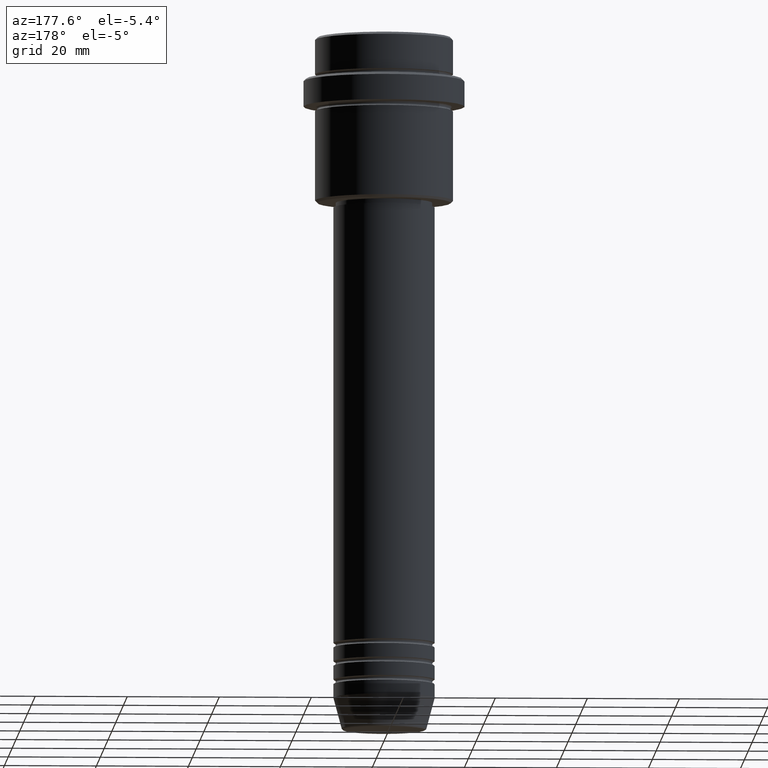
[diagram: clean part render]
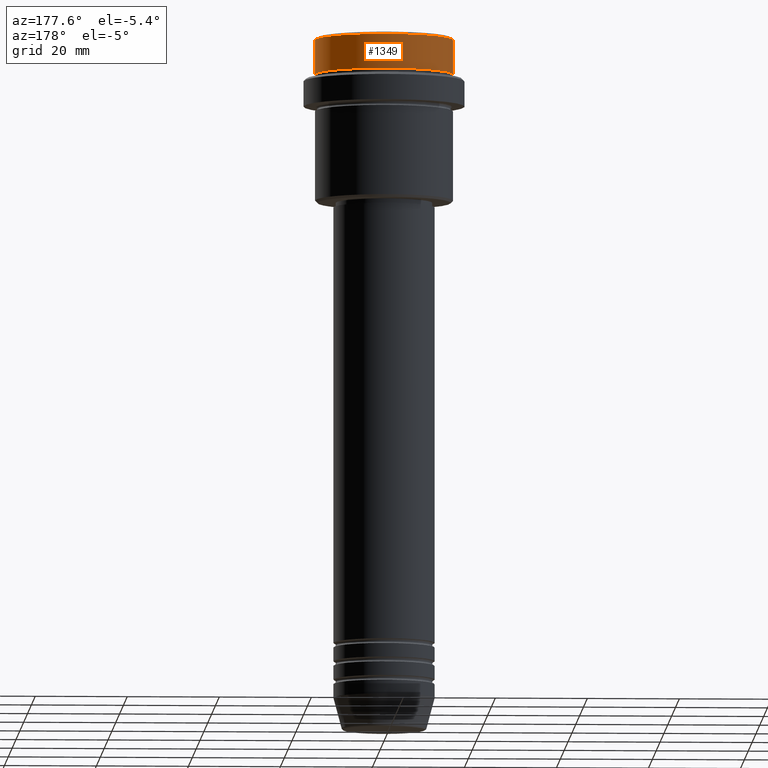
[diagram: same view with one face highlighted and labeled with its STEP entity id]
A machine part, auxiliary view. The second image highlights one B-rep face of the part: STEP entity #1349.
In plain terms, the highlighted cylindrical surface (partial cylindrical patch) has radius 15 mm, axis along (-0, -0, 1).
Its self-contained STEP definition (entity closure, byte-faithful):
#77 = EDGE_CURVE ( 'NONE', #207, #829, #1373, .T. ) ;
#201 = VERTEX_POINT ( 'NONE', #550 ) ;
#207 = VERTEX_POINT ( 'NONE', #778 ) ;
#297 = CARTESIAN_POINT ( 'NONE',  ( -15.00000000000000000, 1.836970198721029589E-15, 0.000000000000000000 ) ) ;
#403 = EDGE_LOOP ( 'NONE', ( #1034, #514, #1362, #1139 ) ) ;
#405 = CARTESIAN_POINT ( 'NONE',  ( 15.00000000000000000, 0.000000000000000000, -7.999999999999998224 ) ) ;
#407 = DIRECTION ( 'NONE',  ( 1.000000000000000000, 0.000000000000000000, 0.000000000000000000 ) ) ;
#416 = VERTEX_POINT ( 'NONE', #405 ) ;
#495 = DIRECTION ( 'NONE',  ( 0.000000000000000000, 0.000000000000000000, -1.000000000000000000 ) ) ;
#507 = CARTESIAN_POINT ( 'NONE',  ( 0.000000000000000000, 0.000000000000000000, -7.999999999999998224 ) ) ;
#514 = ORIENTED_EDGE ( 'NONE', *, *, #77, .T. ) ;
#531 = CARTESIAN_POINT ( 'NONE',  ( 15.00000000000000000, 0.000000000000000000, 0.000000000000000000 ) ) ;
#550 = CARTESIAN_POINT ( 'NONE',  ( 15.00000000000000000, 0.000000000000000000, -0.4999999999999970024 ) ) ;
#581 = CIRCLE ( 'NONE', #698, 15.00000000000000000 ) ;
#625 = FACE_OUTER_BOUND ( 'NONE', #403, .T. ) ;
#638 = EDGE_CURVE ( 'NONE', #416, #201, #656, .T. ) ;
#656 = LINE ( 'NONE', #531, #1204 ) ;
#698 = AXIS2_PLACEMENT_3D ( 'NONE', #507, #1055, #937 ) ;
#716 = CARTESIAN_POINT ( 'NONE',  ( 0.000000000000000000, 0.000000000000000000, 0.000000000000000000 ) ) ;
#717 = CIRCLE ( 'NONE', #1134, 15.00000000000000000 ) ;
#778 = CARTESIAN_POINT ( 'NONE',  ( -15.00000000000000000, 1.836970198721029589E-15, -7.999999999999998224 ) ) ;
#829 = VERTEX_POINT ( 'NONE', #1009 ) ;
#841 = DIRECTION ( 'NONE',  ( -0.000000000000000000, -0.000000000000000000, 1.000000000000000000 ) ) ;
#851 = DIRECTION ( 'NONE',  ( -0.000000000000000000, -0.000000000000000000, 1.000000000000000000 ) ) ;
#916 = EDGE_CURVE ( 'NONE', #829, #201, #717, .T. ) ;
#926 = DIRECTION ( 'NONE',  ( 1.000000000000000000, 0.000000000000000000, 0.000000000000000000 ) ) ;
#937 = DIRECTION ( 'NONE',  ( 1.000000000000000000, 0.000000000000000000, 0.000000000000000000 ) ) ;
#953 = CARTESIAN_POINT ( 'NONE',  ( 0.000000000000000000, 0.000000000000000000, -0.4999999999999970024 ) ) ;
#963 = CYLINDRICAL_SURFACE ( 'NONE', #1092, 15.00000000000000000 ) ;
#1009 = CARTESIAN_POINT ( 'NONE',  ( -15.00000000000000000, 1.836970198721029589E-15, -0.4999999999999970024 ) ) ;
#1034 = ORIENTED_EDGE ( 'NONE', *, *, #1344, .T. ) ;
#1055 = DIRECTION ( 'NONE',  ( -0.000000000000000000, -0.000000000000000000, 1.000000000000000000 ) ) ;
#1092 = AXIS2_PLACEMENT_3D ( 'NONE', #716, #1159, #407 ) ;
#1134 = AXIS2_PLACEMENT_3D ( 'NONE', #953, #495, #926 ) ;
#1139 = ORIENTED_EDGE ( 'NONE', *, *, #638, .F. ) ;
#1159 = DIRECTION ( 'NONE',  ( -0.000000000000000000, -0.000000000000000000, 1.000000000000000000 ) ) ;
#1204 = VECTOR ( 'NONE', #851, 1000.000000000000000 ) ;
#1344 = EDGE_CURVE ( 'NONE', #416, #207, #581, .T. ) ;
#1349 = ADVANCED_FACE ( 'NONE', ( #625 ), #963, .T. ) ;
#1354 = VECTOR ( 'NONE', #841, 1000.000000000000000 ) ;
#1362 = ORIENTED_EDGE ( 'NONE', *, *, #916, .T. ) ;
#1373 = LINE ( 'NONE', #297, #1354 ) ;